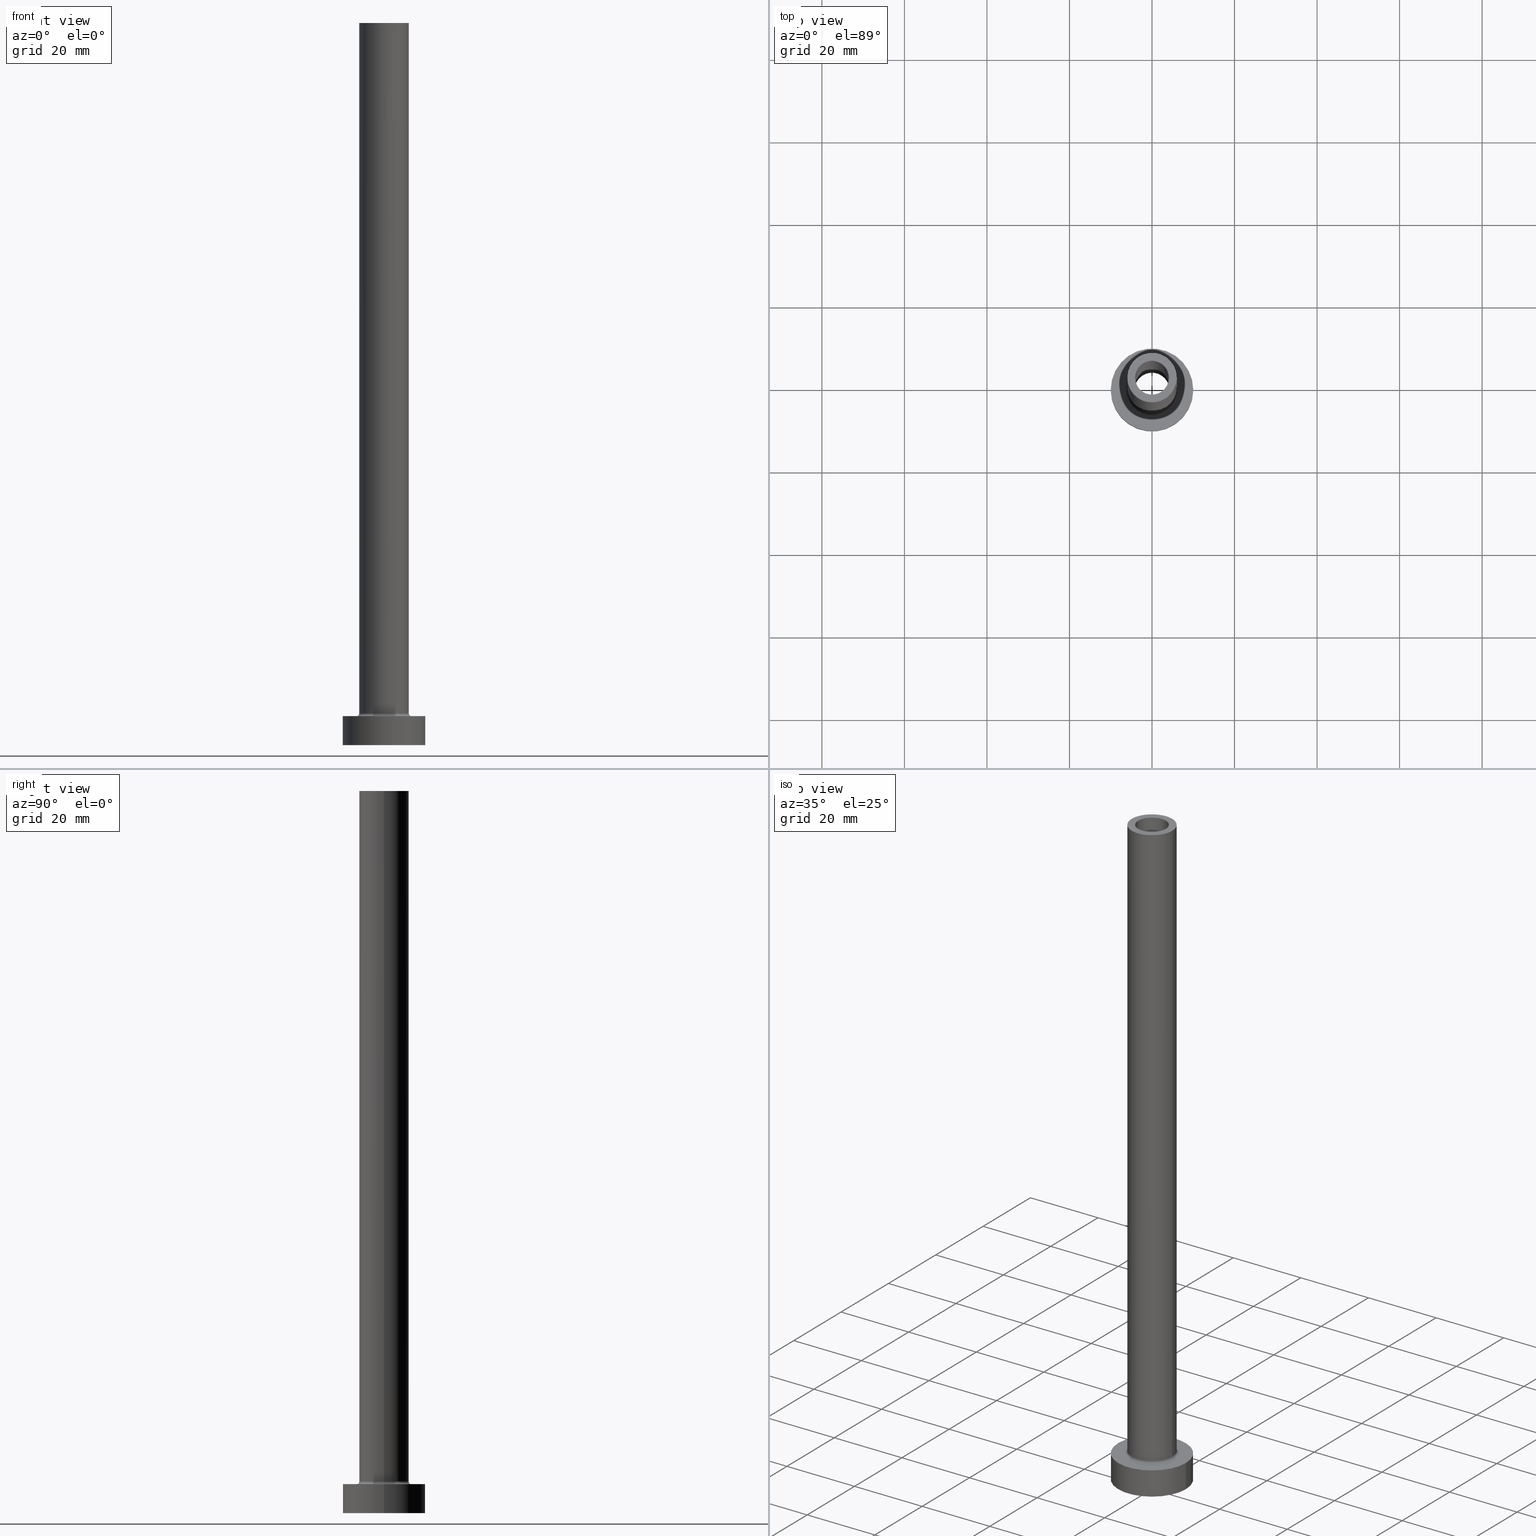
[diagram: canonical four-view strip — front | top / right | iso, engineering-drawing reading convention]
A machine part, canonical four-view strip (front | top / right | iso — engineering-drawing reading convention). The complete STEP part file that produces these views, byte-faithful:
ISO-10303-21;
HEADER;
FILE_DESCRIPTION (( 'STEP AP203' ),
    '1' );
FILE_NAME ('a5de.STEP',
    '2023-02-13T07:45:40',
    ( '' ),
    ( '' ),
    'SwSTEP 2.0',
    'SolidWorks 2019',
    '' );
FILE_SCHEMA (( 'CONFIG_CONTROL_DESIGN' ));
ENDSEC;

DATA;
#1 = CALENDAR_DATE ( 2023, 13, 2 ) ;
#2 = DIRECTION ( 'NONE',  ( 0.000000000000000000, 0.000000000000000000, 1.000000000000000000 ) ) ;
#3 = EDGE_CURVE ( 'NONE', #45, #122, #379, .T. ) ;
#4 = COORDINATED_UNIVERSAL_TIME_OFFSET ( 1, 0, .AHEAD. ) ;
#5 = ORIENTED_EDGE ( 'NONE', *, *, #355, .F. ) ;
#6 = DIRECTION ( 'NONE',  ( -1.000000000000000000, 0.000000000000000000, 0.000000000000000000 ) ) ;
#7 = CALENDAR_DATE ( 2023, 13, 2 ) ;
#8 = AXIS2_PLACEMENT_3D ( 'NONE', #392, #382, #397 ) ;
#9 = COORDINATED_UNIVERSAL_TIME_OFFSET ( 1, 0, .AHEAD. ) ;
#10 = ORIENTED_EDGE ( 'NONE', *, *, #82, .F. ) ;
#11 = CC_DESIGN_DATE_AND_TIME_ASSIGNMENT ( #354, #208, ( #51 ) ) ;
#12 = DIRECTION ( 'NONE',  ( -0.000000000000000000, -0.000000000000000000, -1.000000000000000000 ) ) ;
#13 = UNCERTAINTY_MEASURE_WITH_UNIT (LENGTH_MEASURE( 1.000000000000000082E-05 ), #245, 'distance_accuracy_value', 'NONE');
#14 = DIRECTION ( 'NONE',  ( 1.000000000000000000, 0.000000000000000000, 0.000000000000000000 ) ) ;
#15 = ORIENTED_EDGE ( 'NONE', *, *, #355, .T. ) ;
#16 = ADVANCED_BREP_SHAPE_REPRESENTATION ( 'a5de', ( #415, #200 ), #89 ) ;
#17 = DIRECTION ( 'NONE',  ( 0.000000000000000000, 0.000000000000000000, -1.000000000000000000 ) ) ;
#18 = AXIS2_PLACEMENT_3D ( 'NONE', #333, #154, #181 ) ;
#19 = AXIS2_PLACEMENT_3D ( 'NONE', #96, #108, #311 ) ;
#20 = ORIENTED_EDGE ( 'NONE', *, *, #368, .T. ) ;
#21 = DIRECTION ( 'NONE',  ( 0.000000000000000000, 0.000000000000000000, 1.000000000000000000 ) ) ;
#22 = EDGE_CURVE ( 'NONE', #409, #228, #371, .T. ) ;
#23 = ORIENTED_EDGE ( 'NONE', *, *, #213, .T. ) ;
#24 = PLANE ( 'NONE',  #31 ) ;
#25 = EDGE_LOOP ( 'NONE', ( #192, #69, #124, #283 ) ) ;
#26 = AXIS2_PLACEMENT_3D ( 'NONE', #326, #434, #14 ) ;
#27 = DIRECTION ( 'NONE',  ( 0.000000000000000000, 0.000000000000000000, -1.000000000000000000 ) ) ;
#28 = ORIENTED_EDGE ( 'NONE', *, *, #175, .T. ) ;
#29 = LINE ( 'NONE', #270, #313 ) ;
#30 = DIRECTION ( 'NONE',  ( 0.000000000000000000, 0.000000000000000000, 1.000000000000000000 ) ) ;
#31 = AXIS2_PLACEMENT_3D ( 'NONE', #269, #54, #296 ) ;
#32 = ORIENTED_EDGE ( 'NONE', *, *, #42, .T. ) ;
#33 = FACE_BOUND ( 'NONE', #156, .T. ) ;
#34 = CARTESIAN_POINT ( 'NONE',  ( -4.099999999999999645, 0.000000000000000000, 175.0000000000000284 ) ) ;
#35 = APPROVAL ( #74, 'NEUR�EN�' ) ;
#36 = EDGE_LOOP ( 'NONE', ( #127, #92 ) ) ;
#37 = CARTESIAN_POINT ( 'NONE',  ( 10.00000000000000000, 1.224646799147353256E-15, 0.000000000000000000 ) ) ;
#38 = DIRECTION ( 'NONE',  ( -0.000000000000000000, -0.000000000000000000, -1.000000000000000000 ) ) ;
#39 = CARTESIAN_POINT ( 'NONE',  ( 0.000000000000000000, 0.000000000000000000, 142.0208152801712913 ) ) ;
#40 = DIRECTION ( 'NONE',  ( 0.000000000000000000, 0.000000000000000000, 1.000000000000000000 ) ) ;
#41 = CIRCLE ( 'NONE', #18, 0.7000000000000000666 ) ;
#42 = EDGE_CURVE ( 'NONE', #358, #50, #404, .T. ) ;
#43 = CARTESIAN_POINT ( 'NONE',  ( 0.000000000000000000, 0.000000000000000000, 130.0000000000000000 ) ) ;
#44 = AXIS2_PLACEMENT_3D ( 'NONE', #335, #341, #447 ) ;
#45 = VERTEX_POINT ( 'NONE', #267 ) ;
#46 = EDGE_LOOP ( 'NONE', ( #405, #187, #32, #453 ) ) ;
#47 = PERSON_AND_ORGANIZATION ( #171, #294 ) ;
#48 = DIRECTION ( 'NONE',  ( 1.000000000000000000, 0.000000000000000000, 0.000000000000000000 ) ) ;
#49 = AXIS2_PLACEMENT_3D ( 'NONE', #158, #303, #279 ) ;
#50 = VERTEX_POINT ( 'NONE', #243 ) ;
#51 = PRODUCT_DEFINITION ( 'NEZN�M�', '', #125, #332 ) ;
#52 = DATE_AND_TIME ( #288, #318 ) ;
#53 = ORIENTED_EDGE ( 'NONE', *, *, #430, .F. ) ;
#54 = DIRECTION ( 'NONE',  ( 0.000000000000000000, 0.000000000000000000, 1.000000000000000000 ) ) ;
#55 = ORIENTED_EDGE ( 'NONE', *, *, #213, .F. ) ;
#56 = DIRECTION ( 'NONE',  ( 1.000000000000000000, 0.000000000000000000, 0.000000000000000000 ) ) ;
#57 = ORIENTED_EDGE ( 'NONE', *, *, #234, .T. ) ;
#58 = SECURITY_CLASSIFICATION ( '', '', #80 ) ;
#59 = CYLINDRICAL_SURFACE ( 'NONE', #336, 4.250000000000000000 ) ;
#60 = DIRECTION ( 'NONE',  ( 1.000000000000000000, 0.000000000000000000, 0.000000000000000000 ) ) ;
#61 = FACE_OUTER_BOUND ( 'NONE', #449, .T. ) ;
#62 = VECTOR ( 'NONE', #12, 1000.000000000000000 ) ;
#63 = DIRECTION ( 'NONE',  ( 1.000000000000000000, 0.000000000000000000, 0.000000000000000000 ) ) ;
#64 = CYLINDRICAL_SURFACE ( 'NONE', #281, 4.250000000000000000 ) ;
#65 = CARTESIAN_POINT ( 'NONE',  ( 6.000000000000000888, 7.347880794884119736E-16, 175.0000000000000284 ) ) ;
#66 = DIRECTION ( 'NONE',  ( -1.000000000000000000, 0.000000000000000000, 0.000000000000000000 ) ) ;
#67 = DIRECTION ( 'NONE',  ( 0.000000000000000000, 0.000000000000000000, 1.000000000000000000 ) ) ;
#68 = ADVANCED_FACE ( 'NONE', ( #384 ), #64, .F. ) ;
#69 = ORIENTED_EDGE ( 'NONE', *, *, #407, .F. ) ;
#70 = VECTOR ( 'NONE', #184, 1000.000000000000000 ) ;
#71 = PRODUCT_DEFINITION_SHAPE ( 'NONE', 'NONE',  #51 ) ;
#72 = COORDINATED_UNIVERSAL_TIME_OFFSET ( 1, 0, .AHEAD. ) ;
#73 = CC_DESIGN_APPROVAL ( #35, ( #125 ) ) ;
#74 = APPROVAL_STATUS ( 'not_yet_approved' ) ;
#75 = EDGE_CURVE ( 'NONE', #167, #106, #197, .T. ) ;
#76 = ORIENTED_EDGE ( 'NONE', *, *, #193, .T. ) ;
#77 = APPROVAL_DATE_TIME ( #401, #343 ) ;
#78 = DIRECTION ( 'NONE',  ( -0.000000000000000000, -0.000000000000000000, -1.000000000000000000 ) ) ;
#79 = ORIENTED_EDGE ( 'NONE', *, *, #160, .F. ) ;
#80 = SECURITY_CLASSIFICATION_LEVEL ( 'unclassified' ) ;
#81 = CARTESIAN_POINT ( 'NONE',  ( 10.00000000000000000, 1.224646799147353256E-15, 7.000000000000000000 ) ) ;
#82 = EDGE_CURVE ( 'NONE', #358, #446, #257, .T. ) ;
#83 = EDGE_LOOP ( 'NONE', ( #76, #137 ) ) ;
#84 = CIRCLE ( 'NONE', #390, 10.00000000000000000 ) ;
#85 = PLANE ( 'NONE',  #297 ) ;
#86 = VERTEX_POINT ( 'NONE', #65 ) ;
#87 = ORIENTED_EDGE ( 'NONE', *, *, #368, .F. ) ;
#88 = DIRECTION ( 'NONE',  ( -0.000000000000000000, -0.000000000000000000, -1.000000000000000000 ) ) ;
#89 =( GEOMETRIC_REPRESENTATION_CONTEXT ( 3 ) GLOBAL_UNCERTAINTY_ASSIGNED_CONTEXT ( ( #13 ) ) GLOBAL_UNIT_ASSIGNED_CONTEXT ( ( #245, #385, #309 ) ) REPRESENTATION_CONTEXT ( 'NONE', 'WORKASPACE' ) );
#90 = EDGE_LOOP ( 'NONE', ( #372, #280 ) ) ;
#91 = FACE_BOUND ( 'NONE', #90, .T. ) ;
#92 = ORIENTED_EDGE ( 'NONE', *, *, #22, .T. ) ;
#93 = CIRCLE ( 'NONE', #8, 4.250000000000000000 ) ;
#94 = ORIENTED_EDGE ( 'NONE', *, *, #364, .T. ) ;
#95 = ORIENTED_EDGE ( 'NONE', *, *, #75, .T. ) ;
#96 = CARTESIAN_POINT ( 'NONE',  ( 0.000000000000000000, 0.000000000000000000, 130.0000000000000000 ) ) ;
#97 = ADVANCED_FACE ( 'NONE', ( #114 ), #254, .T. ) ;
#98 = DIRECTION ( 'NONE',  ( 1.000000000000000000, 0.000000000000000000, 0.000000000000000000 ) ) ;
#99 = DIRECTION ( 'NONE',  ( 0.000000000000000000, 0.000000000000000000, 1.000000000000000000 ) ) ;
#100 = TOROIDAL_SURFACE ( 'NONE', #117, 6.700000000000001066, 0.6999999999999999556 ) ;
#101 = CYLINDRICAL_SURFACE ( 'NONE', #210, 4.099999999999999645 ) ;
#102 = FACE_BOUND ( 'NONE', #36, .T. ) ;
#103 = CARTESIAN_POINT ( 'NONE',  ( 4.250000000000000000, 5.204748896376250699E-16, 0.000000000000000000 ) ) ;
#104 = CARTESIAN_POINT ( 'NONE',  ( 0.000000000000000000, 0.000000000000000000, 7.000000000000000000 ) ) ;
#105 = EDGE_CURVE ( 'NONE', #106, #167, #161, .T. ) ;
#106 = VERTEX_POINT ( 'NONE', #347 ) ;
#107 = DIRECTION ( 'NONE',  ( 1.000000000000000000, 0.000000000000000000, 0.000000000000000000 ) ) ;
#108 = DIRECTION ( 'NONE',  ( 0.000000000000000000, 0.000000000000000000, 1.000000000000000000 ) ) ;
#109 = AXIS2_PLACEMENT_3D ( 'NONE', #104, #38, #66 ) ;
#110 = FACE_OUTER_BOUND ( 'NONE', #189, .T. ) ;
#111 = CARTESIAN_POINT ( 'NONE',  ( -4.250000000000000000, 0.000000000000000000, 0.000000000000000000 ) ) ;
#112 = CALENDAR_DATE ( 2023, 13, 2 ) ;
#113 = LOCAL_TIME ( 8, 45, 40.00000000000000000, #9 ) ;
#114 = FACE_OUTER_BOUND ( 'NONE', #46, .T. ) ;
#115 = CC_DESIGN_PERSON_AND_ORGANIZATION_ASSIGNMENT ( #252, #256, ( #51 ) ) ;
#116 = VERTEX_POINT ( 'NONE', #103 ) ;
#117 = AXIS2_PLACEMENT_3D ( 'NONE', #419, #99, #251 ) ;
#118 = ORIENTED_EDGE ( 'NONE', *, *, #330, .T. ) ;
#119 = PERSON_AND_ORGANIZATION ( #171, #294 ) ;
#120 = DIRECTION ( 'NONE',  ( 1.000000000000000000, 0.000000000000000000, 0.000000000000000000 ) ) ;
#121 = VERTEX_POINT ( 'NONE', #37 ) ;
#122 = VERTEX_POINT ( 'NONE', #168 ) ;
#123 = AXIS2_PLACEMENT_3D ( 'NONE', #399, #78, #218 ) ;
#124 = ORIENTED_EDGE ( 'NONE', *, *, #3, .T. ) ;
#125 = PRODUCT_DEFINITION_FORMATION_WITH_SPECIFIED_SOURCE ( 'LIBOVOLN�', '', #388, .NOT_KNOWN. ) ;
#126 = PERSON_AND_ORGANIZATION ( #171, #294 ) ;
#127 = ORIENTED_EDGE ( 'NONE', *, *, #188, .T. ) ;
#128 = CARTESIAN_POINT ( 'NONE',  ( -4.250000000000000000, 0.000000000000000000, 130.0000000000000000 ) ) ;
#129 = DIRECTION ( 'NONE',  ( -0.000000000000000000, -0.000000000000000000, -1.000000000000000000 ) ) ;
#130 = CC_DESIGN_PERSON_AND_ORGANIZATION_ASSIGNMENT ( #431, #398, ( #388 ) ) ;
#131 = FACE_OUTER_BOUND ( 'NONE', #223, .T. ) ;
#132 = AXIS2_PLACEMENT_3D ( 'NONE', #138, #2, #282 ) ;
#133 = EDGE_CURVE ( 'NONE', #122, #121, #191, .T. ) ;
#134 = DIRECTION ( 'NONE',  ( -1.000000000000000000, 0.000000000000000000, 0.000000000000000000 ) ) ;
#135 = DIRECTION ( 'NONE',  ( 0.000000000000000000, 0.000000000000000000, -1.000000000000000000 ) ) ;
#136 = DIRECTION ( 'NONE',  ( 0.000000000000000000, 0.000000000000000000, -1.000000000000000000 ) ) ;
#137 = ORIENTED_EDGE ( 'NONE', *, *, #224, .T. ) ;
#138 = CARTESIAN_POINT ( 'NONE',  ( 0.000000000000000000, 0.000000000000000000, 130.0000000000000000 ) ) ;
#139 = ORIENTED_EDGE ( 'NONE', *, *, #295, .T. ) ;
#140 = DIRECTION ( 'NONE',  ( 0.000000000000000000, 0.000000000000000000, -1.000000000000000000 ) ) ;
#141 = VECTOR ( 'NONE', #236, 1000.000000000000000 ) ;
#142 = DIRECTION ( 'NONE',  ( 1.000000000000000000, 0.000000000000000000, 0.000000000000000000 ) ) ;
#143 = PERSON_AND_ORGANIZATION ( #171, #294 ) ;
#144 = DIRECTION ( 'NONE',  ( 1.000000000000000000, 0.000000000000000000, 0.000000000000000000 ) ) ;
#145 = COORDINATED_UNIVERSAL_TIME_OFFSET ( 1, 0, .AHEAD. ) ;
#146 = CARTESIAN_POINT ( 'NONE',  ( -4.099999999999999645, 0.000000000000000000, 130.0000000000000000 ) ) ;
#147 = EDGE_LOOP ( 'NONE', ( #164, #413, #427, #87 ) ) ;
#148 = ADVANCED_FACE ( 'NONE', ( #102, #242 ), #317, .F. ) ;
#149 = CIRCLE ( 'NONE', #428, 6.700000000000001066 ) ;
#150 = CIRCLE ( 'NONE', #123, 6.700000000000001066 ) ;
#151 = FACE_BOUND ( 'NONE', #307, .T. ) ;
#152 = ORIENTED_EDGE ( 'NONE', *, *, #451, .F. ) ;
#153 = AXIS2_PLACEMENT_3D ( 'NONE', #381, #203, #198 ) ;
#154 = DIRECTION ( 'NONE',  ( 1.224646799147353207E-16, 1.000000000000000000, -0.000000000000000000 ) ) ;
#155 = VERTEX_POINT ( 'NONE', #111 ) ;
#156 = EDGE_LOOP ( 'NONE', ( #353, #278 ) ) ;
#157 = EDGE_CURVE ( 'NONE', #116, #155, #93, .T. ) ;
#158 = CARTESIAN_POINT ( 'NONE',  ( 0.000000000000000000, 0.000000000000000000, 175.0000000000000284 ) ) ;
#159 = ORIENTED_EDGE ( 'NONE', *, *, #375, .T. ) ;
#160 = EDGE_CURVE ( 'NONE', #271, #155, #262, .T. ) ;
#161 = CIRCLE ( 'NONE', #308, 4.099999999999999645 ) ;
#162 = CIRCLE ( 'NONE', #356, 6.000000000000000888 ) ;
#163 = DIRECTION ( 'NONE',  ( 1.000000000000000000, 0.000000000000000000, 0.000000000000000000 ) ) ;
#164 = ORIENTED_EDGE ( 'NONE', *, *, #175, .F. ) ;
#165 = DIRECTION ( 'NONE',  ( 0.000000000000000000, 0.000000000000000000, -1.000000000000000000 ) ) ;
#166 = ADVANCED_FACE ( 'NONE', ( #151, #214 ), #85, .T. ) ;
#167 = VERTEX_POINT ( 'NONE', #286 ) ;
#168 = CARTESIAN_POINT ( 'NONE',  ( -10.00000000000000000, 0.000000000000000000, 0.000000000000000000 ) ) ;
#169 = DIRECTION ( 'NONE',  ( 0.000000000000000000, 0.000000000000000000, 1.000000000000000000 ) ) ;
#170 = VECTOR ( 'NONE', #17, 1000.000000000000000 ) ;
#171 = PERSON ( 'NEUR�EN�', 'NEUR�EN�', 'NEUR�EN�', ('NEUR�EN�'), ('NEUR�EN�'), ('NEUR�EN�') ) ;
#172 = EDGE_LOOP ( 'NONE', ( #264, #369, #291, #425 ) ) ;
#173 = DIRECTION ( 'NONE',  ( 0.000000000000000000, -1.000000000000000000, 0.000000000000000000 ) ) ;
#174 = APPROVAL_DATE_TIME ( #178, #35 ) ;
#175 = EDGE_CURVE ( 'NONE', #50, #221, #41, .T. ) ;
#176 = CIRCLE ( 'NONE', #351, 10.00000000000000000 ) ;
#177 = VECTOR ( 'NONE', #135, 1000.000000000000000 ) ;
#178 = DATE_AND_TIME ( #292, #361 ) ;
#179 = DIRECTION ( 'NONE',  ( 0.000000000000000000, 0.000000000000000000, 1.000000000000000000 ) ) ;
#180 = LOCAL_TIME ( 8, 45, 40.00000000000000000, #250 ) ;
#181 = DIRECTION ( 'NONE',  ( -1.000000000000000000, 1.224646799147353454E-16, 0.000000000000000000 ) ) ;
#182 = ORIENTED_EDGE ( 'NONE', *, *, #133, .F. ) ;
#183 = APPROVAL_ROLE ( '' ) ;
#184 = DIRECTION ( 'NONE',  ( -0.000000000000000000, -0.000000000000000000, -1.000000000000000000 ) ) ;
#185 = ORIENTED_EDGE ( 'NONE', *, *, #330, .F. ) ;
#186 = CIRCLE ( 'NONE', #220, 4.250000000000000000 ) ;
#187 = ORIENTED_EDGE ( 'NONE', *, *, #207, .T. ) ;
#188 = EDGE_CURVE ( 'NONE', #228, #409, #240, .T. ) ;
#189 = EDGE_LOOP ( 'NONE', ( #5, #28, #362, #10 ) ) ;
#190 = FACE_OUTER_BOUND ( 'NONE', #273, .T. ) ;
#191 = CIRCLE ( 'NONE', #230, 10.00000000000000000 ) ;
#192 = ORIENTED_EDGE ( 'NONE', *, *, #364, .F. ) ;
#193 = EDGE_CURVE ( 'NONE', #366, #86, #162, .T. ) ;
#194 = DIRECTION ( 'NONE',  ( -0.000000000000000000, -0.000000000000000000, -1.000000000000000000 ) ) ;
#195 = CARTESIAN_POINT ( 'NONE',  ( 0.000000000000000000, 0.000000000000000000, 7.700000000000012612 ) ) ;
#196 = CARTESIAN_POINT ( 'NONE',  ( 4.099999999999999645, 5.021051876504147385E-16, 130.0000000000000000 ) ) ;
#197 = CIRCLE ( 'NONE', #49, 4.099999999999999645 ) ;
#198 = DIRECTION ( 'NONE',  ( -1.000000000000000000, 0.000000000000000000, 0.000000000000000000 ) ) ;
#199 = DIRECTION ( 'NONE',  ( 0.000000000000000000, 0.000000000000000000, 1.000000000000000000 ) ) ;
#200 = AXIS2_PLACEMENT_3D ( 'NONE', #274, #418, #98 ) ;
#201 = CARTESIAN_POINT ( 'NONE',  ( 6.700000000000001066, 0.000000000000000000, 7.000000000000006217 ) ) ;
#202 = CARTESIAN_POINT ( 'NONE',  ( 0.000000000000000000, 0.000000000000000000, 0.000000000000000000 ) ) ;
#203 = DIRECTION ( 'NONE',  ( -0.000000000000000000, -0.000000000000000000, -1.000000000000000000 ) ) ;
#204 = DIRECTION ( 'NONE',  ( 1.000000000000000000, 0.000000000000000000, 0.000000000000000000 ) ) ;
#205 = VECTOR ( 'NONE', #219, 1000.000000000000000 ) ;
#206 = AXIS2_PLACEMENT_3D ( 'NONE', #422, #377, #416 ) ;
#207 = EDGE_CURVE ( 'NONE', #86, #358, #209, .T. ) ;
#208 = DATE_TIME_ROLE ( 'creation_date' ) ;
#209 = LINE ( 'NONE', #357, #70 ) ;
#210 = AXIS2_PLACEMENT_3D ( 'NONE', #246, #461, #134 ) ;
#211 = PERSON_AND_ORGANIZATION_ROLE ( 'design_supplier' ) ;
#212 = CARTESIAN_POINT ( 'NONE',  ( 6.000000000000000888, 7.347880794884119736E-16, 7.700000000000012612 ) ) ;
#213 = EDGE_CURVE ( 'NONE', #121, #122, #176, .T. ) ;
#214 = FACE_OUTER_BOUND ( 'NONE', #402, .T. ) ;
#215 = LINE ( 'NONE', #328, #170 ) ;
#216 = CARTESIAN_POINT ( 'NONE',  ( 0.000000000000000000, 0.000000000000000000, 7.000000000000000000 ) ) ;
#217 = ORIENTED_EDGE ( 'NONE', *, *, #375, .F. ) ;
#218 = DIRECTION ( 'NONE',  ( 1.000000000000000000, 0.000000000000000000, 0.000000000000000000 ) ) ;
#219 = DIRECTION ( 'NONE',  ( 0.000000000000000000, 0.000000000000000000, -1.000000000000000000 ) ) ;
#220 = AXIS2_PLACEMENT_3D ( 'NONE', #367, #129, #373 ) ;
#221 = VERTEX_POINT ( 'NONE', #329 ) ;
#222 = VECTOR ( 'NONE', #165, 1000.000000000000000 ) ;
#223 = EDGE_LOOP ( 'NONE', ( #334, #159, #225, #185 ) ) ;
#224 = EDGE_CURVE ( 'NONE', #86, #366, #444, .T. ) ;
#225 = ORIENTED_EDGE ( 'NONE', *, *, #188, .F. ) ;
#226 = CC_DESIGN_PERSON_AND_ORGANIZATION_ASSIGNMENT ( #441, #359, ( #58 ) ) ;
#227 = SHAPE_DEFINITION_REPRESENTATION ( #71, #16 ) ;
#228 = VERTEX_POINT ( 'NONE', #146 ) ;
#229 = DIRECTION ( 'NONE',  ( -1.000000000000000000, 0.000000000000000000, 0.000000000000000000 ) ) ;
#230 = AXIS2_PLACEMENT_3D ( 'NONE', #202, #40, #314 ) ;
#231 = ORIENTED_EDGE ( 'NONE', *, *, #3, .F. ) ;
#232 = CIRCLE ( 'NONE', #445, 10.00000000000000000 ) ;
#233 = DIRECTION ( 'NONE',  ( 0.000000000000000000, 0.000000000000000000, 1.000000000000000000 ) ) ;
#234 = EDGE_CURVE ( 'NONE', #446, #221, #149, .T. ) ;
#235 = CARTESIAN_POINT ( 'NONE',  ( 10.00000000000000000, 1.224646799147353256E-15, 7.000000000000000000 ) ) ;
#236 = DIRECTION ( 'NONE',  ( -0.000000000000000000, -0.000000000000000000, -1.000000000000000000 ) ) ;
#237 = CYLINDRICAL_SURFACE ( 'NONE', #109, 10.00000000000000000 ) ;
#238 = CARTESIAN_POINT ( 'NONE',  ( 0.000000000000000000, 0.000000000000000000, 130.0000000000000000 ) ) ;
#239 = MECHANICAL_CONTEXT ( 'NONE', #301, 'mechanical' ) ;
#240 = CIRCLE ( 'NONE', #290, 4.099999999999999645 ) ;
#241 = CIRCLE ( 'NONE', #322, 6.000000000000000888 ) ;
#242 = FACE_OUTER_BOUND ( 'NONE', #260, .T. ) ;
#243 = CARTESIAN_POINT ( 'NONE',  ( -6.000000000000000888, 0.000000000000000000, 7.700000000000012612 ) ) ;
#244 = EDGE_CURVE ( 'NONE', #268, #45, #84, .T. ) ;
#245 =( LENGTH_UNIT ( ) NAMED_UNIT ( * ) SI_UNIT ( .MILLI., .METRE. ) );
#246 = CARTESIAN_POINT ( 'NONE',  ( 0.000000000000000000, 0.000000000000000000, 175.0000000000000284 ) ) ;
#247 = CARTESIAN_POINT ( 'NONE',  ( 4.250000000000000000, 5.204748896376250699E-16, 142.0208152801712913 ) ) ;
#248 = ORIENTED_EDGE ( 'NONE', *, *, #22, .F. ) ;
#249 = ADVANCED_FACE ( 'NONE', ( #378 ), #300, .T. ) ;
#250 = COORDINATED_UNIVERSAL_TIME_OFFSET ( 1, 0, .AHEAD. ) ;
#251 = DIRECTION ( 'NONE',  ( 1.000000000000000000, 0.000000000000000000, 0.000000000000000000 ) ) ;
#252 = PERSON_AND_ORGANIZATION ( #171, #294 ) ;
#253 = DIRECTION ( 'NONE',  ( 0.000000000000000000, 0.000000000000000000, 1.000000000000000000 ) ) ;
#254 = CYLINDRICAL_SURFACE ( 'NONE', #438, 6.000000000000000888 ) ;
#255 = EDGE_CURVE ( 'NONE', #155, #116, #186, .T. ) ;
#256 = PERSON_AND_ORGANIZATION_ROLE ( 'creator' ) ;
#257 = CIRCLE ( 'NONE', #321, 0.7000000000000000666 ) ;
#258 = ORIENTED_EDGE ( 'NONE', *, *, #193, .F. ) ;
#259 = CARTESIAN_POINT ( 'NONE',  ( 0.000000000000000000, 0.000000000000000000, 7.000000000000000000 ) ) ;
#260 = EDGE_LOOP ( 'NONE', ( #53, #152 ) ) ;
#261 = CARTESIAN_POINT ( 'NONE',  ( 0.000000000000000000, 0.000000000000000000, 7.000000000000000000 ) ) ;
#262 = LINE ( 'NONE', #365, #205 ) ;
#263 = AXIS2_PLACEMENT_3D ( 'NONE', #195, #276, #420 ) ;
#264 = ORIENTED_EDGE ( 'NONE', *, *, #386, .F. ) ;
#265 = EDGE_LOOP ( 'NONE', ( #182, #55 ) ) ;
#266 = EDGE_LOOP ( 'NONE', ( #435, #305, #400, #79 ) ) ;
#267 = CARTESIAN_POINT ( 'NONE',  ( -10.00000000000000000, 0.000000000000000000, 7.000000000000000000 ) ) ;
#268 = VERTEX_POINT ( 'NONE', #235 ) ;
#269 = CARTESIAN_POINT ( 'NONE',  ( 0.000000000000000000, 0.000000000000000000, 0.000000000000000000 ) ) ;
#270 = CARTESIAN_POINT ( 'NONE',  ( -6.000000000000000888, 0.000000000000000000, 175.0000000000000284 ) ) ;
#271 = VERTEX_POINT ( 'NONE', #128 ) ;
#272 = FACE_OUTER_BOUND ( 'NONE', #172, .T. ) ;
#273 = EDGE_LOOP ( 'NONE', ( #217, #95, #118, #248 ) ) ;
#274 = CARTESIAN_POINT ( 'NONE',  ( 0.000000000000000000, 0.000000000000000000, 0.000000000000000000 ) ) ;
#275 = ADVANCED_FACE ( 'NONE', ( #91, #340 ), #24, .F. ) ;
#276 = DIRECTION ( 'NONE',  ( 0.000000000000000000, 0.000000000000000000, 1.000000000000000000 ) ) ;
#277 = TOROIDAL_SURFACE ( 'NONE', #342, 6.700000000000001066, 0.6999999999999999556 ) ;
#278 = ORIENTED_EDGE ( 'NONE', *, *, #75, .F. ) ;
#279 = DIRECTION ( 'NONE',  ( 1.000000000000000000, 0.000000000000000000, 0.000000000000000000 ) ) ;
#280 = ORIENTED_EDGE ( 'NONE', *, *, #157, .F. ) ;
#281 = AXIS2_PLACEMENT_3D ( 'NONE', #337, #27, #229 ) ;
#282 = DIRECTION ( 'NONE',  ( 1.000000000000000000, 0.000000000000000000, -0.000000000000000000 ) ) ;
#283 = ORIENTED_EDGE ( 'NONE', *, *, #133, .T. ) ;
#284 = APPROVAL_STATUS ( 'not_yet_approved' ) ;
#285 = CARTESIAN_POINT ( 'NONE',  ( 0.000000000000000000, 0.000000000000000000, 175.0000000000000284 ) ) ;
#286 = CARTESIAN_POINT ( 'NONE',  ( 4.099999999999999645, 5.021051876504147385E-16, 175.0000000000000284 ) ) ;
#287 = CC_DESIGN_PERSON_AND_ORGANIZATION_ASSIGNMENT ( #143, #352, ( #125 ) ) ;
#288 = CALENDAR_DATE ( 2023, 13, 2 ) ;
#289 = CARTESIAN_POINT ( 'NONE',  ( -6.000000000000000888, 0.000000000000000000, 175.0000000000000284 ) ) ;
#290 = AXIS2_PLACEMENT_3D ( 'NONE', #363, #179, #142 ) ;
#291 = ORIENTED_EDGE ( 'NONE', *, *, #160, .T. ) ;
#292 = CALENDAR_DATE ( 2023, 13, 2 ) ;
#293 = CARTESIAN_POINT ( 'NONE',  ( 0.000000000000000000, 0.000000000000000000, 0.000000000000000000 ) ) ;
#294 = ORGANIZATION ( 'NEUR�EN�', 'NEUR�EN�', '' ) ;
#295 = EDGE_CURVE ( 'NONE', #366, #50, #29, .T. ) ;
#296 = DIRECTION ( 'NONE',  ( 1.000000000000000000, 0.000000000000000000, -0.000000000000000000 ) ) ;
#297 = AXIS2_PLACEMENT_3D ( 'NONE', #216, #21, #360 ) ;
#298 = AXIS2_PLACEMENT_3D ( 'NONE', #43, #169, #163 ) ;
#299 = ORIENTED_EDGE ( 'NONE', *, *, #407, .T. ) ;
#300 = CYLINDRICAL_SURFACE ( 'NONE', #396, 6.000000000000000888 ) ;
#301 = APPLICATION_CONTEXT ( 'configuration controlled 3d designs of mechanical parts and assemblies' ) ;
#302 = ADVANCED_FACE ( 'NONE', ( #190 ), #455, .F. ) ;
#303 = DIRECTION ( 'NONE',  ( 0.000000000000000000, 0.000000000000000000, 1.000000000000000000 ) ) ;
#304 = DATE_TIME_ROLE ( 'classification_date' ) ;
#305 = ORIENTED_EDGE ( 'NONE', *, *, #386, .T. ) ;
#306 = CC_DESIGN_DATE_AND_TIME_ASSIGNMENT ( #52, #304, ( #58 ) ) ;
#307 = EDGE_LOOP ( 'NONE', ( #57, #20 ) ) ;
#308 = AXIS2_PLACEMENT_3D ( 'NONE', #394, #199, #107 ) ;
#309 =( NAMED_UNIT ( * ) SI_UNIT ( $, .STERADIAN. ) SOLID_ANGLE_UNIT ( ) );
#310 = ADVANCED_FACE ( 'NONE', ( #414 ), #277, .F. ) ;
#311 = DIRECTION ( 'NONE',  ( 1.000000000000000000, 0.000000000000000000, 0.000000000000000000 ) ) ;
#312 = EDGE_LOOP ( 'NONE', ( #338, #258, #139, #15 ) ) ;
#313 = VECTOR ( 'NONE', #194, 1000.000000000000000 ) ;
#314 = DIRECTION ( 'NONE',  ( 1.000000000000000000, 0.000000000000000000, 0.000000000000000000 ) ) ;
#315 = ADVANCED_FACE ( 'NONE', ( #272 ), #59, .F. ) ;
#316 = DATE_AND_TIME ( #1, #458 ) ;
#317 = PLANE ( 'NONE',  #132 ) ;
#318 = LOCAL_TIME ( 8, 45, 40.00000000000000000, #145 ) ;
#319 = PLANE ( 'NONE',  #206 ) ;
#320 = DIRECTION ( 'NONE',  ( -0.000000000000000000, -0.000000000000000000, -1.000000000000000000 ) ) ;
#321 = AXIS2_PLACEMENT_3D ( 'NONE', #433, #173, #140 ) ;
#322 = AXIS2_PLACEMENT_3D ( 'NONE', #389, #67, #204 ) ;
#323 = APPLICATION_PROTOCOL_DEFINITION ( 'international standard', 'config_control_design', 1994, #448 ) ;
#324 = ADVANCED_FACE ( 'NONE', ( #110 ), #100, .F. ) ;
#325 = DIRECTION ( 'NONE',  ( 0.000000000000000000, 0.000000000000000000, 1.000000000000000000 ) ) ;
#326 = CARTESIAN_POINT ( 'NONE',  ( 0.000000000000000000, 0.000000000000000000, 175.0000000000000284 ) ) ;
#327 = PRODUCT_RELATED_PRODUCT_CATEGORY ( 'detail', '', ( #388 ) ) ;
#328 = CARTESIAN_POINT ( 'NONE',  ( 4.099999999999999645, 5.021051876504147385E-16, 175.0000000000000284 ) ) ;
#329 = CARTESIAN_POINT ( 'NONE',  ( -6.700000000000001066, 8.205133554287267548E-16, 7.000000000000006217 ) ) ;
#330 = EDGE_CURVE ( 'NONE', #106, #228, #345, .T. ) ;
#331 = CC_DESIGN_SECURITY_CLASSIFICATION ( #58, ( #125 ) ) ;
#332 = DESIGN_CONTEXT ( 'detailed design', #448, 'design' ) ;
#333 = CARTESIAN_POINT ( 'NONE',  ( -6.700000000000001066, 8.205133554287267548E-16, 7.700000000000012612 ) ) ;
#334 = ORIENTED_EDGE ( 'NONE', *, *, #105, .T. ) ;
#335 = CARTESIAN_POINT ( 'NONE',  ( 0.000000000000000000, 0.000000000000000000, 175.0000000000000284 ) ) ;
#336 = AXIS2_PLACEMENT_3D ( 'NONE', #39, #136, #429 ) ;
#337 = CARTESIAN_POINT ( 'NONE',  ( 0.000000000000000000, 0.000000000000000000, 142.0208152801712913 ) ) ;
#338 = ORIENTED_EDGE ( 'NONE', *, *, #207, .F. ) ;
#339 = APPROVAL_PERSON_ORGANIZATION ( #47, #343, #437 ) ;
#340 = FACE_OUTER_BOUND ( 'NONE', #265, .T. ) ;
#341 = DIRECTION ( 'NONE',  ( 0.000000000000000000, 0.000000000000000000, -1.000000000000000000 ) ) ;
#342 = AXIS2_PLACEMENT_3D ( 'NONE', #370, #30, #56 ) ;
#343 = APPROVAL ( #284, 'NEUR�EN�' ) ;
#344 = CARTESIAN_POINT ( 'NONE',  ( 4.250000000000000000, 5.204748896376250699E-16, 130.0000000000000000 ) ) ;
#345 = LINE ( 'NONE', #34, #222 ) ;
#346 = CC_DESIGN_APPROVAL ( #343, ( #51 ) ) ;
#347 = CARTESIAN_POINT ( 'NONE',  ( -4.099999999999999645, 0.000000000000000000, 175.0000000000000284 ) ) ;
#348 = CARTESIAN_POINT ( 'NONE',  ( 0.000000000000000000, 0.000000000000000000, 7.000000000000000000 ) ) ;
#349 = ADVANCED_FACE ( 'NONE', ( #131 ), #101, .F. ) ;
#350 = CYLINDRICAL_SURFACE ( 'NONE', #153, 10.00000000000000000 ) ;
#351 = AXIS2_PLACEMENT_3D ( 'NONE', #293, #325, #144 ) ;
#352 = PERSON_AND_ORGANIZATION_ROLE ( 'creator' ) ;
#353 = ORIENTED_EDGE ( 'NONE', *, *, #105, .F. ) ;
#354 = DATE_AND_TIME ( #7, #180 ) ;
#355 = EDGE_CURVE ( 'NONE', #50, #358, #241, .T. ) ;
#356 = AXIS2_PLACEMENT_3D ( 'NONE', #285, #253, #48 ) ;
#357 = CARTESIAN_POINT ( 'NONE',  ( 6.000000000000000888, 7.347880794884119736E-16, 175.0000000000000284 ) ) ;
#358 = VERTEX_POINT ( 'NONE', #212 ) ;
#359 = PERSON_AND_ORGANIZATION_ROLE ( 'classification_officer' ) ;
#360 = DIRECTION ( 'NONE',  ( 1.000000000000000000, 0.000000000000000000, -0.000000000000000000 ) ) ;
#361 = LOCAL_TIME ( 8, 45, 40.00000000000000000, #72 ) ;
#362 = ORIENTED_EDGE ( 'NONE', *, *, #234, .F. ) ;
#363 = CARTESIAN_POINT ( 'NONE',  ( 0.000000000000000000, 0.000000000000000000, 130.0000000000000000 ) ) ;
#364 = EDGE_CURVE ( 'NONE', #268, #121, #403, .T. ) ;
#365 = CARTESIAN_POINT ( 'NONE',  ( -4.250000000000000000, 0.000000000000000000, 142.0208152801712913 ) ) ;
#366 = VERTEX_POINT ( 'NONE', #289 ) ;
#367 = CARTESIAN_POINT ( 'NONE',  ( 0.000000000000000000, 0.000000000000000000, 0.000000000000000000 ) ) ;
#368 = EDGE_CURVE ( 'NONE', #221, #446, #150, .T. ) ;
#369 = ORIENTED_EDGE ( 'NONE', *, *, #451, .T. ) ;
#370 = CARTESIAN_POINT ( 'NONE',  ( 0.000000000000000000, 0.000000000000000000, 7.700000000000012612 ) ) ;
#371 = CIRCLE ( 'NONE', #380, 4.099999999999999645 ) ;
#372 = ORIENTED_EDGE ( 'NONE', *, *, #255, .F. ) ;
#373 = DIRECTION ( 'NONE',  ( 1.000000000000000000, 0.000000000000000000, 0.000000000000000000 ) ) ;
#374 = CC_DESIGN_APPROVAL ( #432, ( #58 ) ) ;
#375 = EDGE_CURVE ( 'NONE', #167, #409, #215, .T. ) ;
#376 = DIRECTION ( 'NONE',  ( 0.000000000000000000, 0.000000000000000000, 1.000000000000000000 ) ) ;
#377 = DIRECTION ( 'NONE',  ( 0.000000000000000000, 0.000000000000000000, 1.000000000000000000 ) ) ;
#378 = FACE_OUTER_BOUND ( 'NONE', #312, .T. ) ;
#379 = LINE ( 'NONE', #417, #141 ) ;
#380 = AXIS2_PLACEMENT_3D ( 'NONE', #238, #376, #60 ) ;
#381 = CARTESIAN_POINT ( 'NONE',  ( 0.000000000000000000, 0.000000000000000000, 7.000000000000000000 ) ) ;
#382 = DIRECTION ( 'NONE',  ( -0.000000000000000000, -0.000000000000000000, -1.000000000000000000 ) ) ;
#383 = APPROVAL_STATUS ( 'not_yet_approved' ) ;
#384 = FACE_OUTER_BOUND ( 'NONE', #266, .T. ) ;
#385 =( NAMED_UNIT ( * ) PLANE_ANGLE_UNIT ( ) SI_UNIT ( $, .RADIAN. ) );
#386 = EDGE_CURVE ( 'NONE', #440, #116, #412, .T. ) ;
#387 = APPROVAL_PERSON_ORGANIZATION ( #391, #35, #183 ) ;
#388 = PRODUCT ( 'a5de', 'a5de', '', ( #239 ) ) ;
#389 = CARTESIAN_POINT ( 'NONE',  ( 0.000000000000000000, 0.000000000000000000, 7.700000000000012612 ) ) ;
#390 = AXIS2_PLACEMENT_3D ( 'NONE', #261, #233, #410 ) ;
#391 = PERSON_AND_ORGANIZATION ( #171, #294 ) ;
#392 = CARTESIAN_POINT ( 'NONE',  ( 0.000000000000000000, 0.000000000000000000, 0.000000000000000000 ) ) ;
#393 = ADVANCED_FACE ( 'NONE', ( #33, #460 ), #319, .T. ) ;
#394 = CARTESIAN_POINT ( 'NONE',  ( 0.000000000000000000, 0.000000000000000000, 175.0000000000000284 ) ) ;
#395 = APPROVAL_DATE_TIME ( #316, #432 ) ;
#396 = AXIS2_PLACEMENT_3D ( 'NONE', #450, #88, #452 ) ;
#397 = DIRECTION ( 'NONE',  ( 1.000000000000000000, 0.000000000000000000, 0.000000000000000000 ) ) ;
#398 = PERSON_AND_ORGANIZATION_ROLE ( 'design_owner' ) ;
#399 = CARTESIAN_POINT ( 'NONE',  ( 0.000000000000000000, 0.000000000000000000, 7.000000000000000000 ) ) ;
#400 = ORIENTED_EDGE ( 'NONE', *, *, #157, .T. ) ;
#401 = DATE_AND_TIME ( #112, #113 ) ;
#402 = EDGE_LOOP ( 'NONE', ( #299, #456 ) ) ;
#403 = LINE ( 'NONE', #81, #62 ) ;
#404 = CIRCLE ( 'NONE', #263, 6.000000000000000888 ) ;
#405 = ORIENTED_EDGE ( 'NONE', *, *, #224, .F. ) ;
#406 = ORIENTED_EDGE ( 'NONE', *, *, #244, .F. ) ;
#407 = EDGE_CURVE ( 'NONE', #45, #268, #232, .T. ) ;
#408 = APPROVAL_PERSON_ORGANIZATION ( #126, #432, #443 ) ;
#409 = VERTEX_POINT ( 'NONE', #196 ) ;
#410 = DIRECTION ( 'NONE',  ( 1.000000000000000000, 0.000000000000000000, 0.000000000000000000 ) ) ;
#411 = CC_DESIGN_PERSON_AND_ORGANIZATION_ASSIGNMENT ( #119, #211, ( #125 ) ) ;
#412 = LINE ( 'NONE', #247, #177 ) ;
#413 = ORIENTED_EDGE ( 'NONE', *, *, #42, .F. ) ;
#414 = FACE_OUTER_BOUND ( 'NONE', #147, .T. ) ;
#415 = MANIFOLD_SOLID_BREP ( 'Odebrat vysunut�m4', #421 ) ;
#416 = DIRECTION ( 'NONE',  ( 1.000000000000000000, 0.000000000000000000, -0.000000000000000000 ) ) ;
#417 = CARTESIAN_POINT ( 'NONE',  ( -10.00000000000000000, 0.000000000000000000, 7.000000000000000000 ) ) ;
#418 = DIRECTION ( 'NONE',  ( 0.000000000000000000, 0.000000000000000000, 1.000000000000000000 ) ) ;
#419 = CARTESIAN_POINT ( 'NONE',  ( 0.000000000000000000, 0.000000000000000000, 7.700000000000012612 ) ) ;
#420 = DIRECTION ( 'NONE',  ( 1.000000000000000000, 0.000000000000000000, 0.000000000000000000 ) ) ;
#421 = CLOSED_SHELL ( 'NONE', ( #349, #68, #324, #97, #459, #436, #166, #275, #249, #393, #310, #315, #148, #302 ) ) ;
#422 = CARTESIAN_POINT ( 'NONE',  ( 0.000000000000000000, 0.000000000000000000, 175.0000000000000284 ) ) ;
#423 = CARTESIAN_POINT ( 'NONE',  ( 0.000000000000000000, 0.000000000000000000, 175.0000000000000284 ) ) ;
#424 = DIRECTION ( 'NONE',  ( 0.000000000000000000, 0.000000000000000000, 1.000000000000000000 ) ) ;
#425 = ORIENTED_EDGE ( 'NONE', *, *, #255, .T. ) ;
#426 = FACE_OUTER_BOUND ( 'NONE', #25, .T. ) ;
#427 = ORIENTED_EDGE ( 'NONE', *, *, #82, .T. ) ;
#428 = AXIS2_PLACEMENT_3D ( 'NONE', #259, #442, #120 ) ;
#429 = DIRECTION ( 'NONE',  ( -1.000000000000000000, 0.000000000000000000, 0.000000000000000000 ) ) ;
#430 = EDGE_CURVE ( 'NONE', #271, #440, #439, .T. ) ;
#431 = PERSON_AND_ORGANIZATION ( #171, #294 ) ;
#432 = APPROVAL ( #383, 'NEUR�EN�' ) ;
#433 = CARTESIAN_POINT ( 'NONE',  ( 6.700000000000001066, 0.000000000000000000, 7.700000000000012612 ) ) ;
#434 = DIRECTION ( 'NONE',  ( 0.000000000000000000, 0.000000000000000000, 1.000000000000000000 ) ) ;
#435 = ORIENTED_EDGE ( 'NONE', *, *, #430, .T. ) ;
#436 = ADVANCED_FACE ( 'NONE', ( #426 ), #237, .T. ) ;
#437 = APPROVAL_ROLE ( '' ) ;
#438 = AXIS2_PLACEMENT_3D ( 'NONE', #423, #320, #6 ) ;
#439 = CIRCLE ( 'NONE', #19, 4.250000000000000000 ) ;
#440 = VERTEX_POINT ( 'NONE', #344 ) ;
#441 = PERSON_AND_ORGANIZATION ( #171, #294 ) ;
#442 = DIRECTION ( 'NONE',  ( -0.000000000000000000, -0.000000000000000000, -1.000000000000000000 ) ) ;
#443 = APPROVAL_ROLE ( '' ) ;
#444 = CIRCLE ( 'NONE', #26, 6.000000000000000888 ) ;
#445 = AXIS2_PLACEMENT_3D ( 'NONE', #348, #424, #63 ) ;
#446 = VERTEX_POINT ( 'NONE', #201 ) ;
#447 = DIRECTION ( 'NONE',  ( -1.000000000000000000, 0.000000000000000000, 0.000000000000000000 ) ) ;
#448 = APPLICATION_CONTEXT ( 'configuration controlled 3d designs of mechanical parts and assemblies' ) ;
#449 = EDGE_LOOP ( 'NONE', ( #406, #94, #23, #231 ) ) ;
#450 = CARTESIAN_POINT ( 'NONE',  ( 0.000000000000000000, 0.000000000000000000, 175.0000000000000284 ) ) ;
#451 = EDGE_CURVE ( 'NONE', #440, #271, #454, .T. ) ;
#452 = DIRECTION ( 'NONE',  ( -1.000000000000000000, 0.000000000000000000, 0.000000000000000000 ) ) ;
#453 = ORIENTED_EDGE ( 'NONE', *, *, #295, .F. ) ;
#454 = CIRCLE ( 'NONE', #298, 4.250000000000000000 ) ;
#455 = CYLINDRICAL_SURFACE ( 'NONE', #44, 4.099999999999999645 ) ;
#456 = ORIENTED_EDGE ( 'NONE', *, *, #244, .T. ) ;
#457 = APPLICATION_PROTOCOL_DEFINITION ( 'international standard', 'config_control_design', 1994, #301 ) ;
#458 = LOCAL_TIME ( 8, 45, 40.00000000000000000, #4 ) ;
#459 = ADVANCED_FACE ( 'NONE', ( #61 ), #350, .T. ) ;
#460 = FACE_OUTER_BOUND ( 'NONE', #83, .T. ) ;
#461 = DIRECTION ( 'NONE',  ( 0.000000000000000000, 0.000000000000000000, -1.000000000000000000 ) ) ;
ENDSEC;
END-ISO-10303-21;
